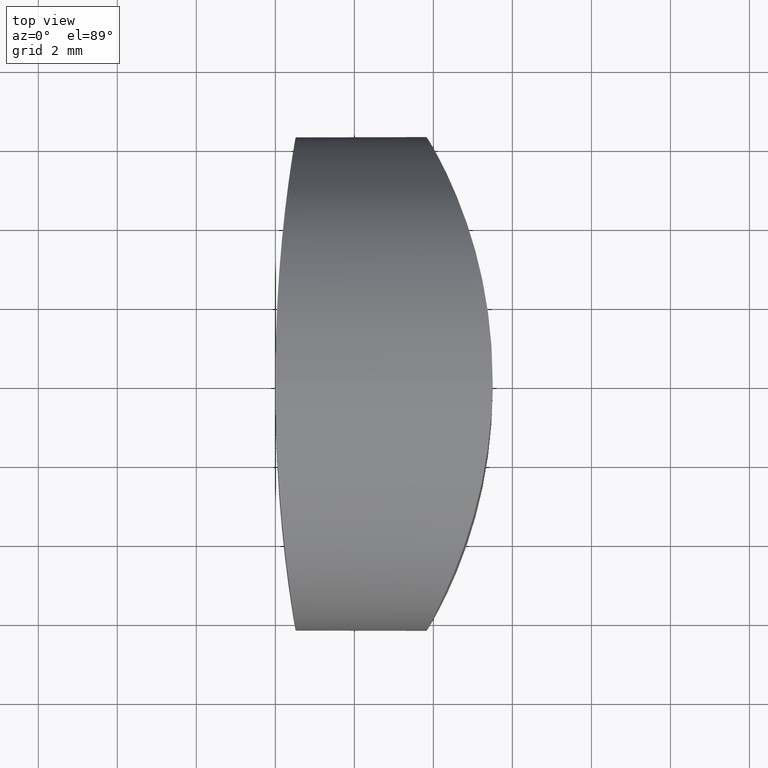
[diagram: clean part render]
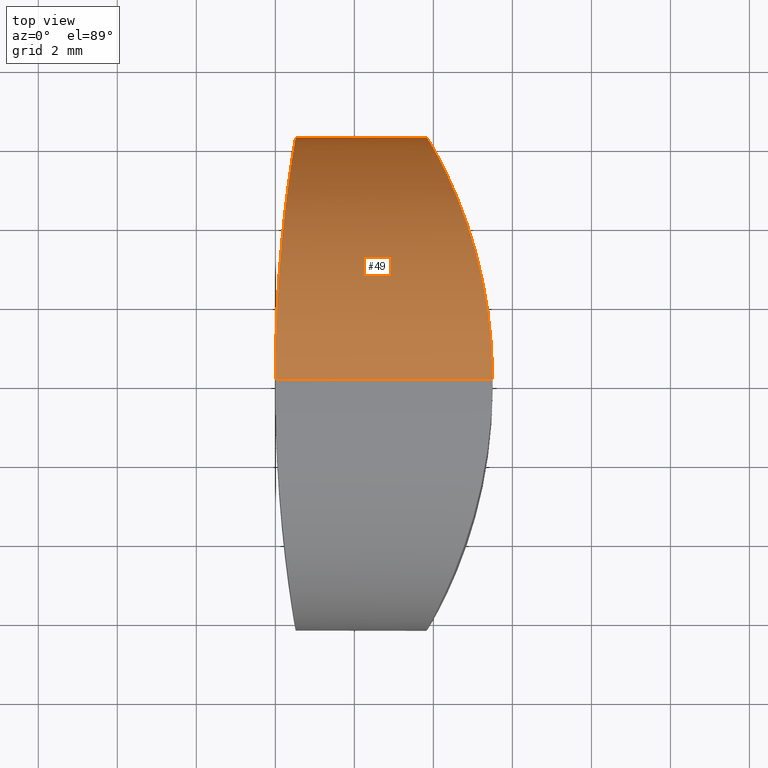
[diagram: same view with one face highlighted and labeled with its STEP entity id]
A machine part, top view. The second image highlights one B-rep face of the part: STEP entity #49.
In plain terms, the highlighted cylindrical surface (partial cylindrical patch) has radius 6.25 mm, axis along (-1, 0, 0).
Its self-contained STEP definition (entity closure, byte-faithful):
#2 = EDGE_CURVE ( 'NONE', #99, #308, #129, .T. ) ;
#4 = CARTESIAN_POINT ( 'NONE',  ( 4.172729123313466459, 5.605792025897764042, 3.456763474040483342 ) ) ;
#5 = VECTOR ( 'NONE', #240, 1000.000000000000000 ) ;
#6 = CARTESIAN_POINT ( 'NONE',  ( 0.3712370531485177927, 5.306952595992871835, 9.557702663449575198 ) ) ;
#7 = CARTESIAN_POINT ( 'NONE',  ( 3.848281652511831297, 6.208098310133491005, 7.081702215123205413 ) ) ;
#16 = CARTESIAN_POINT ( 'NONE',  ( 5.333543247772056795, 2.042164353938774823, 12.16058217872954650 ) ) ;
#20 = CARTESIAN_POINT ( 'NONE',  ( 5.499999999999998224, -6.071532165918824830E-15, 12.50000000000000000 ) ) ;
#25 = VERTEX_POINT ( 'NONE', #86 ) ;
#26 = ORIENTED_EDGE ( 'NONE', *, *, #223, .F. ) ;
#28 = DIRECTION ( 'NONE',  ( -1.000000000000000000, 0.000000000000000000, 0.000000000000000000 ) ) ;
#32 = CARTESIAN_POINT ( 'NONE',  ( 0.4276680670000638229, 5.693122442755145229, 8.836930401006377167 ) ) ;
#37 = CARTESIAN_POINT ( 'NONE',  ( 0.006722411323912873271, 0.8198081996233537172, 12.45938440285156368 ) ) ;
#38 = CARTESIAN_POINT ( 'NONE',  ( 4.012820659232004594, 5.911247298030493980, 4.209826821762267635 ) ) ;
#40 = CARTESIAN_POINT ( 'NONE',  ( 1.586780899593034504E-14, 0.000000000000000000, 12.50000000000000000 ) ) ;
#41 = EDGE_CURVE ( 'NONE', #25, #308, #323, .T. ) ;
#42 = CARTESIAN_POINT ( 'NONE',  ( 4.744212298873294209, 4.281501630418608428, 10.80756029290237308 ) ) ;
#46 = CARTESIAN_POINT ( 'NONE',  ( 3.823802999769002398, 6.249941174666591159, 5.828481136673940632 ) ) ;
#48 = CARTESIAN_POINT ( 'NONE',  ( 5.499999999999997335, 0.4204308858565055651, -8.156927282058909307E-16 ) ) ;
#49 = ADVANCED_FACE ( 'NONE', ( #175 ), #180, .T. ) ;
#54 = CARTESIAN_POINT ( 'NONE',  ( 5.188630579431041667, 2.797752453290867081, 11.85364509015268375 ) ) ;
#60 = CARTESIAN_POINT ( 'NONE',  ( 0.09911606883178178395, 2.772427347907981510, 11.86637811019742728 ) ) ;
#62 = CARTESIAN_POINT ( 'NONE',  ( 12.50000000000000000, -5.306127916451729366E-15, -8.673617379884035472E-16 ) ) ;
#63 = CARTESIAN_POINT ( 'NONE',  ( 0.05255947898324982159, 2.010206376271948869, 12.17146012049471970 ) ) ;
#65 = CARTESIAN_POINT ( 'NONE',  ( 0.5093075111576726988, 6.209374154871080798, 5.430120496945727737 ) ) ;
#66 = CARTESIAN_POINT ( 'NONE',  ( 5.189010716184502492, 2.796367035738788864, 0.6455166091982036392 ) ) ;
#67 = CARTESIAN_POINT ( 'NONE',  ( 1.588409122250466759E-14, 0.4134255789196245590, 12.49999999999999822 ) ) ;
#69 = CARTESIAN_POINT ( 'NONE',  ( 5.398363331412208588, 1.641239386668556843, 0.2052509474003404166 ) ) ;
#75 = CARTESIAN_POINT ( 'NONE',  ( 4.422545947120749332, 5.076343834273174593, 2.598401443172736247 ) ) ;
#79 = CARTESIAN_POINT ( 'NONE',  ( 5.299930854168772854, 2.234790816785134027, 12.09034667436657351 ) ) ;
#86 = CARTESIAN_POINT ( 'NONE',  ( 5.499999999999998224, -5.306127916451729366E-15, -8.673617379884035472E-16 ) ) ;
#87 = DIRECTION ( 'NONE',  ( 0.000000000000000000, 0.000000000000000000, 1.000000000000000000 ) ) ;
#90 = CARTESIAN_POINT ( 'NONE',  ( 0.1894075534532281002, 3.809602619551915037, 11.22150589208422211 ) ) ;
#93 = CARTESIAN_POINT ( 'NONE',  ( 0.2909321468649697651, 4.708308257056167179, 2.119656254009213203 ) ) ;
#94 = CARTESIAN_POINT ( 'NONE',  ( 0.5161281065952297853, 6.250005880011081594, 6.663329757632371120 ) ) ;
#96 = CARTESIAN_POINT ( 'NONE',  ( 4.172178724081478052, 5.606908644890310711, 9.041307703863516565 ) ) ;
#99 = VERTEX_POINT ( 'NONE', #251 ) ;
#110 = VERTEX_POINT ( 'NONE', #297 ) ;
#111 = CARTESIAN_POINT ( 'NONE',  ( 0.4629163348924673627, 5.921449997130793008, 4.239764576256090045 ) ) ;
#112 = CARTESIAN_POINT ( 'NONE',  ( 0.4519564804885490839, 5.851590433140085423, 4.044716774585913832 ) ) ;
#114 = CARTESIAN_POINT ( 'NONE',  ( 0.1434734016638211096, 3.307782318069393934, 0.9430969255095816850 ) ) ;
#115 = CARTESIAN_POINT ( 'NONE',  ( 0.4635543670983650055, 5.927301729704571365, 8.273611226608222680 ) ) ;
#116 = CARTESIAN_POINT ( 'NONE',  ( 0.1903832138758750625, 3.819462818899286738, 1.285850506066621213 ) ) ;
#117 = CARTESIAN_POINT ( 'NONE',  ( 0.2234422075718237866, 4.130406150187399206, 10.95825439296210568 ) ) ;
#118 = CARTESIAN_POINT ( 'NONE',  ( 0.3874520569620958921, 5.424574642299629268, 3.119038444070048488 ) ) ;
#123 = CARTESIAN_POINT ( 'NONE',  ( 0.2906131354290413249, 4.705757122277619331, 10.38325105703565399 ) ) ;
#124 = CARTESIAN_POINT ( 'NONE',  ( 5.337968765651553760, 2.041851301300694477, 0.3287884736553775000 ) ) ;
#126 = CARTESIAN_POINT ( 'NONE',  ( 0.06340325607153471377, 2.205264468755675722, 12.10159787937252318 ) ) ;
#128 = CARTESIAN_POINT ( 'NONE',  ( 4.476029905335527026, 4.954742388226756056, 2.435091165306355165 ) ) ;
#129 = B_SPLINE_CURVE_WITH_KNOTS ( 'NONE', 3,
 ( #40, #67, #37, #259, #299, #63, #126, #60, #231, #90, #117, #123, #277, #6, #227, #158, #32, #115, #225, #152, #94, #301, #65, #279, #253, #111, #112, #153, #118, #249, #93, #300, #116, #114, #248, #178, #276, #150, #278, #203, #228, #148 ),
 .UNSPECIFIED., .F., .F.,
 ( 4, 2, 2, 2, 2, 2, 2, 2, 2, 2, 2, 2, 2, 2, 2, 2, 2, 2, 2, 2, 4 ),
 ( 0.009780015612640236694, 0.01100254913169195978, 0.01161381589121782132, 0.01222508265074368286, 0.01344761616979540594, 0.01467014968884712903, 0.01589268320789885211, 0.01650394996742471018, 0.01711521672695057172, 0.01833775024600228787, 0.01956028376505400401, 0.02078281728410572016, 0.02139408404363158517, 0.02200535080315744324, 0.02322788432220916632, 0.02445041784126088594, 0.02567295136031260902, 0.02628421811983847056, 0.02689548487936432863, 0.02811801839841605172, 0.02934055191746777133 ),
 .UNSPECIFIED. ) ;
#130 = CARTESIAN_POINT ( 'NONE',  ( 4.268015616409025270, 5.414671851212649045, 3.102368554034560688 ) ) ;
#131 = VECTOR ( 'NONE', #295, 1000.000000000000000 ) ;
#134 = CARTESIAN_POINT ( 'NONE',  ( 5.417967346490907943, 1.443662297825257790, 12.33451607500837888 ) ) ;
#147 = EDGE_LOOP ( 'NONE', ( #321, #334, #262, #26 ) ) ;
#148 = CARTESIAN_POINT ( 'NONE',  ( 1.136498184832648444E-14, 1.068157224305689298E-31, -9.773172231851168020E-16 ) ) ;
#150 = CARTESIAN_POINT ( 'NONE',  ( 0.05192097804021216650, 2.023680260765044370, 0.3227214294892951640 ) ) ;
#152 = CARTESIAN_POINT ( 'NONE',  ( 0.5093075005178590020, 6.209391377072571494, 7.071998629749255194 ) ) ;
#153 = CARTESIAN_POINT ( 'NONE',  ( 0.4158996845203564163, 5.616382215434502889, 3.477584155255838638 ) ) ;
#157 = CARTESIAN_POINT ( 'NONE',  ( 5.100579253738413144, 3.152975419826734793, 0.8383114528152735279 ) ) ;
#158 = CARTESIAN_POINT ( 'NONE',  ( 0.4145551284406269743, 5.605955219611362672, 9.020820502704196997 ) ) ;
#160 = CARTESIAN_POINT ( 'NONE',  ( 3.946516896790600804, 6.033034497158880072, 4.604507377177165850 ) ) ;
#161 = CARTESIAN_POINT ( 'NONE',  ( 4.797469905077320185, 4.133108092026782643, 10.94260991263577232 ) ) ;
#162 = CARTESIAN_POINT ( 'NONE',  ( 4.267814276648357996, 5.415114148527830906, 9.396978498980850247 ) ) ;
#165 = CARTESIAN_POINT ( 'NONE',  ( 5.392645114789288208, 1.646284723063273114, 12.28284042144510835 ) ) ;
#169 = CARTESIAN_POINT ( 'NONE',  ( 5.478819348541651202, 0.8339676614958736467, 12.45797750707659546 ) ) ;
#175 = FACE_OUTER_BOUND ( 'NONE', #147, .T. ) ;
#178 = CARTESIAN_POINT ( 'NONE',  ( 0.1004642519542808671, 2.770896678793054679, 0.6440823207147481355 ) ) ;
#180 = CYLINDRICAL_SURFACE ( 'NONE', #287, 6.250000000000000888 ) ;
#184 = CARTESIAN_POINT ( 'NONE',  ( 4.050235299533525790, 5.841329982157798639, 4.017846853050253131 ) ) ;
#187 = CARTESIAN_POINT ( 'NONE',  ( 4.474283165928804706, 4.963069113008130806, 10.07032457968412942 ) ) ;
#189 = CARTESIAN_POINT ( 'NONE',  ( 3.917788844864439124, 6.084608863991471495, 4.806776444047099695 ) ) ;
#203 = CARTESIAN_POINT ( 'NONE',  ( 0.006725581728656185310, 0.8220718780741880227, 0.04061856830783121264 ) ) ;
#208 = CARTESIAN_POINT ( 'NONE',  ( 4.583167940201247070, 4.699052856867828254, 2.124239003641036572 ) ) ;
#209 = CARTESIAN_POINT ( 'NONE',  ( 4.637096022221792069, 4.564387682680769665, 1.975777358473987277 ) ) ;
#211 = CARTESIAN_POINT ( 'NONE',  ( 4.901961221584459238, 3.822074769951095963, 1.300771144333626506 ) ) ;
#213 = EDGE_CURVE ( 'NONE', #25, #110, #224, .T. ) ;
#223 = EDGE_CURVE ( 'NONE', #110, #99, #271, .T. ) ;
#224 = B_SPLINE_CURVE_WITH_KNOTS ( 'NONE', 3,
 ( #307, #48, #280, #69, #124, #66, #157, #333, #211, #255, #309, #209, #208, #128, #75, #130, #4, #184, #38, #160, #189, #284, #46, #258, #7, #232, #330, #96, #162, #187, #282, #42, #161, #261, #312, #289, #54, #79, #16, #165, #134, #169, #243, #20 ),
 .UNSPECIFIED., .F., .F.,
 ( 4, 2, 2, 2, 2, 2, 2, 2, 2, 2, 2, 2, 2, 2, 2, 2, 2, 2, 2, 2, 2, 4 ),
 ( -0.01988116416464391287, -0.01863859140435366463, -0.01739601864406341292, -0.01615344588377316468, -0.01553215950362804056, -0.01491087312348291644, -0.01428958674333779405, -0.01366830036319266993, -0.01242572760290242342, -0.01180444122275729930, -0.01118315484261217692, -0.009940582082321932147, -0.008698009322031687376, -0.007455436561741446075, -0.006212863801451201304, -0.004970291041160958267, -0.004349004661015837617, -0.003727718280870716966, -0.002485145520580479134, -0.001863859140435356748, -0.001242572760290237832, 0.000000000000000000 ),
 .UNSPECIFIED. ) ;
#225 = CARTESIAN_POINT ( 'NONE',  ( 0.4829667880085891651, 6.047769522081777538, 7.879940743938747438 ) ) ;
#226 = CARTESIAN_POINT ( 'NONE',  ( 12.50000000000000000, -6.071532165918824830E-15, 6.249999999999999112 ) ) ;
#227 = CARTESIAN_POINT ( 'NONE',  ( 0.3863820165254065464, 5.413179074090407106, 9.380762286460528898 ) ) ;
#228 = CARTESIAN_POINT ( 'NONE',  ( 1.138729918465000334E-14, 0.4134111995047508037, -4.404571325722371624E-16 ) ) ;
#231 = CARTESIAN_POINT ( 'NONE',  ( 0.1273389013799872405, 3.130990395452585062, 11.67455916158250240 ) ) ;
#232 = CARTESIAN_POINT ( 'NONE',  ( 3.939965554773691370, 6.045220159673055704, 7.889367690301843261 ) ) ;
#240 = DIRECTION ( 'NONE',  ( -1.000000000000000000, 0.000000000000000000, 0.000000000000000000 ) ) ;
#243 = CARTESIAN_POINT ( 'NONE',  ( 5.499999999999996447, 0.4206115982728710345, 12.50000000000000000 ) ) ;
#248 = CARTESIAN_POINT ( 'NONE',  ( 0.1284261689345792545, 3.130841143127297332, 0.8368664187948695599 ) ) ;
#249 = CARTESIAN_POINT ( 'NONE',  ( 0.3250607584096774083, 4.971543794433691765, 2.440448502169932254 ) ) ;
#251 = CARTESIAN_POINT ( 'NONE',  ( 1.586780899593034504E-14, 0.000000000000000000, 12.50000000000000000 ) ) ;
#253 = CARTESIAN_POINT ( 'NONE',  ( 0.4818504110742577451, 6.040567720672499696, 4.632545784461094662 ) ) ;
#255 = CARTESIAN_POINT ( 'NONE',  ( 4.797504594718278170, 4.133005283357464421, 1.557304704053683597 ) ) ;
#258 = CARTESIAN_POINT ( 'NONE',  ( 3.823735072082811381, 6.250058703357273870, 6.669772609302327737 ) ) ;
#259 = CARTESIAN_POINT ( 'NONE',  ( 0.02591943132054585000, 1.419281361369312267, 12.34012729373583106 ) ) ;
#261 = CARTESIAN_POINT ( 'NONE',  ( 4.901988962150140239, 3.821992646196489041, 11.19929717282815851 ) ) ;
#262 = ORIENTED_EDGE ( 'NONE', *, *, #2, .F. ) ;
#271 = LINE ( 'NONE', #317, #5 ) ;
#276 = CARTESIAN_POINT ( 'NONE',  ( 0.08746514478116347580, 2.587004763341004043, 0.5569112410737601104 ) ) ;
#277 = CARTESIAN_POINT ( 'NONE',  ( 0.3240844900143889928, 4.964212405381890569, 10.06938034998874976 ) ) ;
#278 = CARTESIAN_POINT ( 'NONE',  ( 0.03273791960081114810, 1.630004840682514500, 0.2022480080350954612 ) ) ;
#279 = CARTESIAN_POINT ( 'NONE',  ( 0.4898667832884721074, 6.090115082466264873, 4.830667152851661150 ) ) ;
#280 = CARTESIAN_POINT ( 'NONE',  ( 5.478843911536261935, 0.8325528602893739194, 0.04197989951058110625 ) ) ;
#282 = CARTESIAN_POINT ( 'NONE',  ( 4.583465705276839053, 4.706014185487394030, 10.38235751416328867 ) ) ;
#284 = CARTESIAN_POINT ( 'NONE',  ( 3.848424530652415410, 6.207861446666264271, 5.415498172633206764 ) ) ;
#287 = AXIS2_PLACEMENT_3D ( 'NONE', #226, #28, #87 ) ;
#289 = CARTESIAN_POINT ( 'NONE',  ( 5.100480944358852575, 3.153303538659008698, 11.66145894078833756 ) ) ;
#292 = CARTESIAN_POINT ( 'NONE',  ( 1.136498184832648444E-14, 1.068157224305689298E-31, -9.773172231851168020E-16 ) ) ;
#295 = DIRECTION ( 'NONE',  ( -1.000000000000000000, 0.000000000000000000, 0.000000000000000000 ) ) ;
#297 = CARTESIAN_POINT ( 'NONE',  ( 5.499999999999998224, -6.071532165918824830E-15, 12.50000000000000000 ) ) ;
#299 = CARTESIAN_POINT ( 'NONE',  ( 0.03383858438658032125, 1.617409952972926890, 12.29057982960559414 ) ) ;
#300 = CARTESIAN_POINT ( 'NONE',  ( 0.2237623363933707865, 4.133327838003983956, 1.544311199506515075 ) ) ;
#301 = CARTESIAN_POINT ( 'NONE',  ( 0.5161261507552202810, 6.249994118724316650, 5.836492437035297520 ) ) ;
#307 = CARTESIAN_POINT ( 'NONE',  ( 5.499999999999998224, -5.306127916451729366E-15, -8.673617379884035472E-16 ) ) ;
#308 = VERTEX_POINT ( 'NONE', #292 ) ;
#309 = CARTESIAN_POINT ( 'NONE',  ( 4.744262744214180039, 4.281363646961192870, 1.692309858094708463 ) ) ;
#312 = CARTESIAN_POINT ( 'NONE',  ( 4.953513515990831451, 3.658322438160683365, 11.32152390383200569 ) ) ;
#317 = CARTESIAN_POINT ( 'NONE',  ( 12.50000000000000000, -6.071532165918824830E-15, 12.50000000000000000 ) ) ;
#321 = ORIENTED_EDGE ( 'NONE', *, *, #213, .F. ) ;
#323 = LINE ( 'NONE', #62, #131 ) ;
#330 = CARTESIAN_POINT ( 'NONE',  ( 4.008200150961177322, 5.922098602681347579, 8.289012356488584032 ) ) ;
#333 = CARTESIAN_POINT ( 'NONE',  ( 4.953423948601561655, 3.658625364287889870, 1.178684374224931775 ) ) ;
#334 = ORIENTED_EDGE ( 'NONE', *, *, #41, .T. ) ;